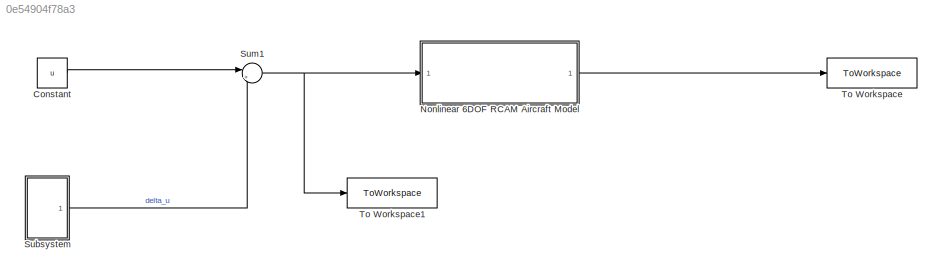
MODEL slx_0e54904f78a3
KIND model
CONFIG AbsTol = auto
CONFIG EnableMultiTasking = off
CONFIG FixedStep = auto
CONFIG MaxStep = auto
CONFIG MinStep = auto
CONFIG RelTol = 1e-3
CONFIG SampleTimeConstraint = Unconstrained
CONFIG SolverName = VariableStepAuto
CONFIG StartTime = 0.0
CONFIG StopTime = TF
BLOCK [Constant] Constant
  Value = u
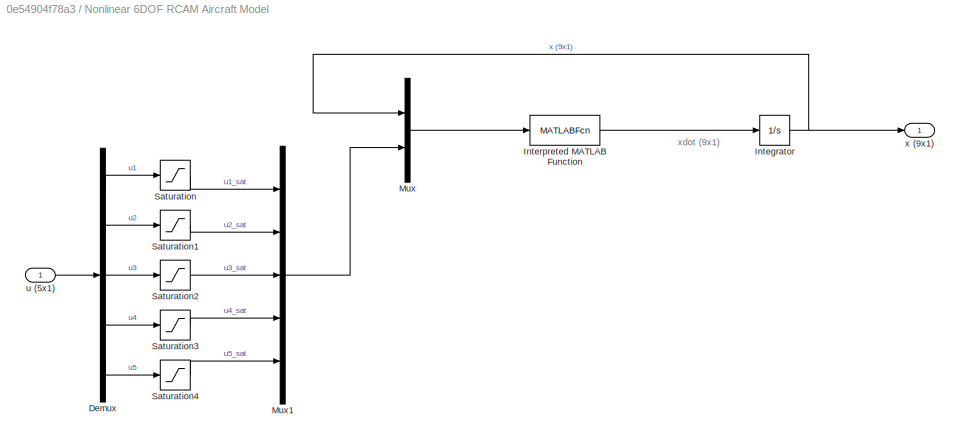
BLOCK [SubSystem] Nonlinear 6DOF RCAM Aircraft Model
  Ports = [1, 1]
  RequestExecContextInheritance = off
BLOCK [Demux] Nonlinear 6DOF RCAM Aircraft Model/Demux
  Outputs = 5
  Ports = [1, 5]
BLOCK [Integrator] Nonlinear 6DOF RCAM Aircraft Model/Integrator
  InitialCondition = x0
  Ports = [1, 1]
BLOCK [MATLABFcn] Nonlinear 6DOF RCAM Aircraft Model/Interpreted MATLAB Function
  MATLABFcn = RCAM_model(u(1:9),u(10:14))
  Ports = [1, 1]
BLOCK [Mux] Nonlinear 6DOF RCAM Aircraft Model/Mux
  DisplayOption = bar
  Inputs = 2
  Ports = [2, 1]
BLOCK [Mux] Nonlinear 6DOF RCAM Aircraft Model/Mux1
  DisplayOption = bar
  Inputs = 5
  Ports = [5, 1]
BLOCK [Saturate] Nonlinear 6DOF RCAM Aircraft Model/Saturation
  LowerLimit = u1min
  UpperLimit = u1max
BLOCK [Saturate] Nonlinear 6DOF RCAM Aircraft Model/Saturation1
  LowerLimit = u2min
  UpperLimit = u2max
BLOCK [Saturate] Nonlinear 6DOF RCAM Aircraft Model/Saturation2
  LowerLimit = u3min
  UpperLimit = u3max
BLOCK [Saturate] Nonlinear 6DOF RCAM Aircraft Model/Saturation3
  LowerLimit = u4min
  UpperLimit = u4max
BLOCK [Saturate] Nonlinear 6DOF RCAM Aircraft Model/Saturation4
  LowerLimit = u5min
  UpperLimit = u5max
BLOCK [Inport] Nonlinear 6DOF RCAM Aircraft Model/u (5x1)
BLOCK [Outport] Nonlinear 6DOF RCAM Aircraft Model/x (9x1)
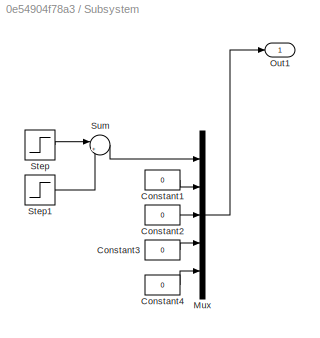
BLOCK [SubSystem] Subsystem
  Ports = [0, 1]
  RequestExecContextInheritance = off
BLOCK [Constant] Subsystem/Constant1
  Value = 0
BLOCK [Constant] Subsystem/Constant2
  Value = 0
BLOCK [Constant] Subsystem/Constant3
  Value = 0
BLOCK [Constant] Subsystem/Constant4
  Value = 0
BLOCK [Mux] Subsystem/Mux
  DisplayOption = bar
  Inputs = 5
  Ports = [5, 1]
BLOCK [Outport] Subsystem/Out1
BLOCK [Step] Subsystem/Step
  After = 5*pi/180
  SampleTime = 0
  Time = 30
BLOCK [Step] Subsystem/Step1
  After = -5*pi/180
  SampleTime = 0
  Time = 30+2
BLOCK [Sum] Subsystem/Sum
  Inputs = |++
  Ports = [2, 1]
BLOCK [Sum] Sum1
  Inputs = |++
  Ports = [2, 1]
BLOCK [ToWorkspace] To Workspace
  FixptAsFi = on
  MaxDataPoints = inf
  Ports = [1]
  SampleTime = -1
  SaveFormat = Timeseries
  VariableName = simX
BLOCK [ToWorkspace] To Workspace1
  FixptAsFi = on
  MaxDataPoints = inf
  Ports = [1]
  SampleTime = -1
  SaveFormat = Timeseries
  VariableName = simU
ANNOTATION Nonlinear 6DOF RCAM Aircraft Model: xdot (9x1)
LINE Constant:1 -> Sum1:1
LINE Nonlinear 6DOF RCAM Aircraft Model/Demux:1 -> Nonlinear 6DOF RCAM Aircraft Model/Saturation:1
LINE Nonlinear 6DOF RCAM Aircraft Model/Demux:2 -> Nonlinear 6DOF RCAM Aircraft Model/Saturation1:1
LINE Nonlinear 6DOF RCAM Aircraft Model/Demux:3 -> Nonlinear 6DOF RCAM Aircraft Model/Saturation2:1
LINE Nonlinear 6DOF RCAM Aircraft Model/Demux:4 -> Nonlinear 6DOF RCAM Aircraft Model/Saturation3:1
LINE Nonlinear 6DOF RCAM Aircraft Model/Demux:5 -> Nonlinear 6DOF RCAM Aircraft Model/Saturation4:1
NET Nonlinear 6DOF RCAM Aircraft Model/Integrator:1 -> Nonlinear 6DOF RCAM Aircraft Model/Mux:1, Nonlinear 6DOF RCAM Aircraft Model/x (9x1):1
LINE Nonlinear 6DOF RCAM Aircraft Model/Interpreted MATLAB Function:1 -> Nonlinear 6DOF RCAM Aircraft Model/Integrator:1
LINE Nonlinear 6DOF RCAM Aircraft Model/Mux1:1 -> Nonlinear 6DOF RCAM Aircraft Model/Mux:2
LINE Nonlinear 6DOF RCAM Aircraft Model/Mux:1 -> Nonlinear 6DOF RCAM Aircraft Model/Interpreted MATLAB Function:1
LINE Nonlinear 6DOF RCAM Aircraft Model/Saturation1:1 -> Nonlinear 6DOF RCAM Aircraft Model/Mux1:2
LINE Nonlinear 6DOF RCAM Aircraft Model/Saturation2:1 -> Nonlinear 6DOF RCAM Aircraft Model/Mux1:3
LINE Nonlinear 6DOF RCAM Aircraft Model/Saturation3:1 -> Nonlinear 6DOF RCAM Aircraft Model/Mux1:4
LINE Nonlinear 6DOF RCAM Aircraft Model/Saturation4:1 -> Nonlinear 6DOF RCAM Aircraft Model/Mux1:5
LINE Nonlinear 6DOF RCAM Aircraft Model/Saturation:1 -> Nonlinear 6DOF RCAM Aircraft Model/Mux1:1
LINE Nonlinear 6DOF RCAM Aircraft Model/u (5x1):1 -> Nonlinear 6DOF RCAM Aircraft Model/Demux:1
LINE Nonlinear 6DOF RCAM Aircraft Model:1 -> To Workspace:1
LINE Subsystem/Constant1:1 -> Subsystem/Mux:2
LINE Subsystem/Constant2:1 -> Subsystem/Mux:3
LINE Subsystem/Constant3:1 -> Subsystem/Mux:4
LINE Subsystem/Constant4:1 -> Subsystem/Mux:5
LINE Subsystem/Mux:1 -> Subsystem/Out1:1
LINE Subsystem/Step1:1 -> Subsystem/Sum:2
LINE Subsystem/Step:1 -> Subsystem/Sum:1
LINE Subsystem/Sum:1 -> Subsystem/Mux:1
LINE Subsystem:1 -> Sum1:2
NET Sum1:1 -> Nonlinear 6DOF RCAM Aircraft Model:1, To Workspace1:1
note: NET lines group one-source signal fan-out (src -> all destinations, sorted); 1:1 wires keep LINE
